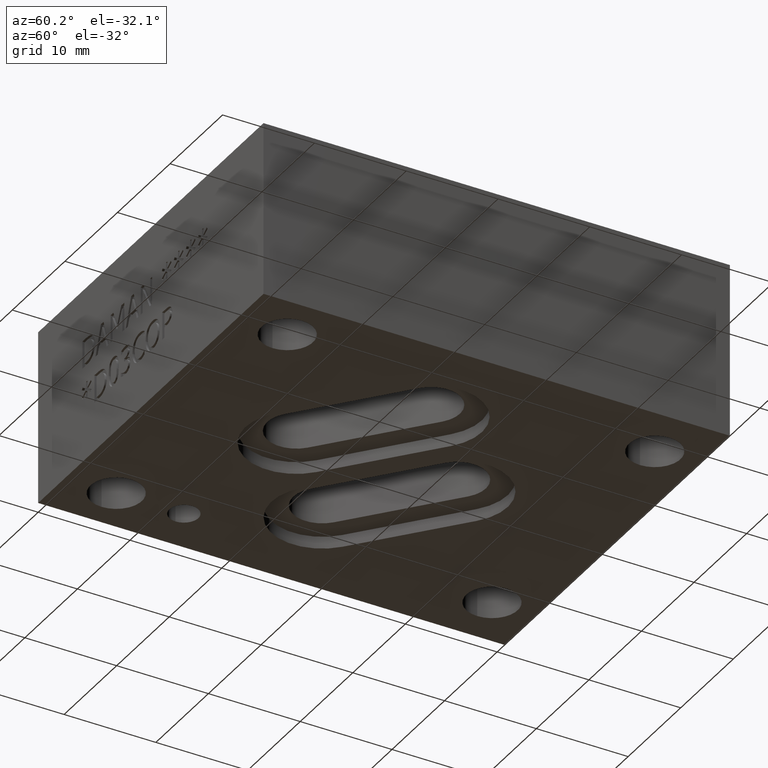
[diagram: clean part render]
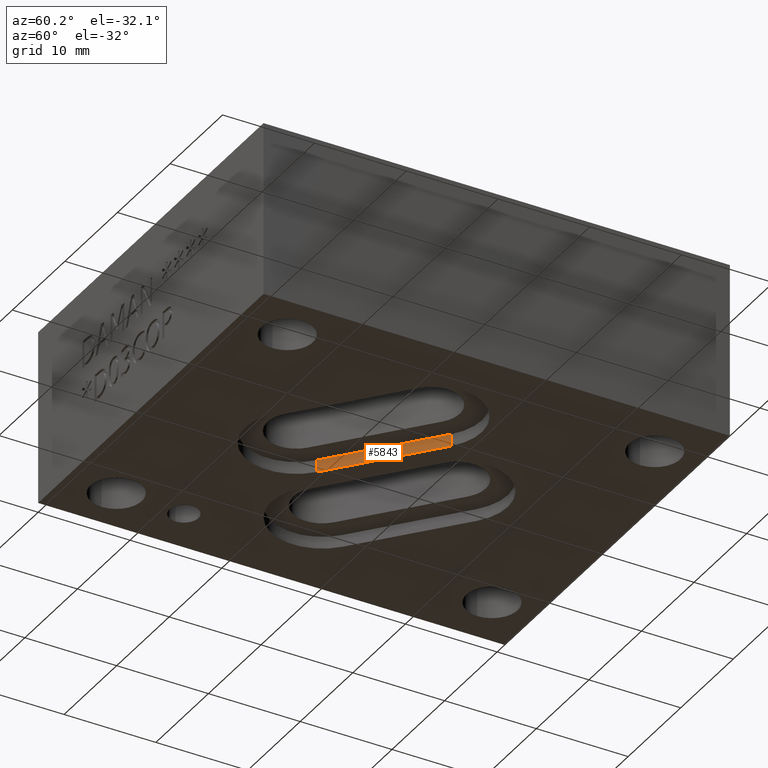
[diagram: same view with one face highlighted and labeled with its STEP entity id]
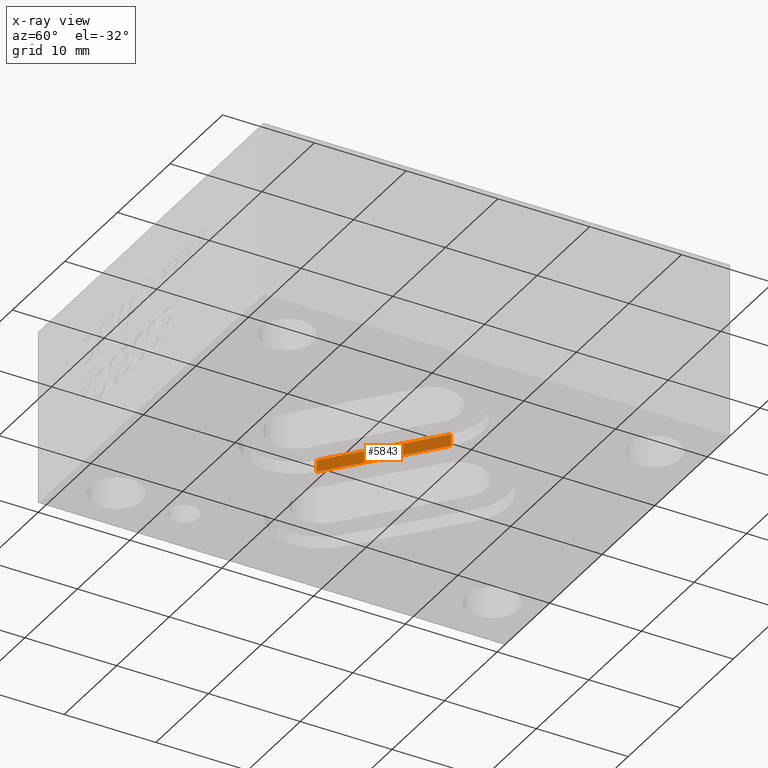
[diagram: x-ray of the same camera — body ghosted, the highlighted face saturated]
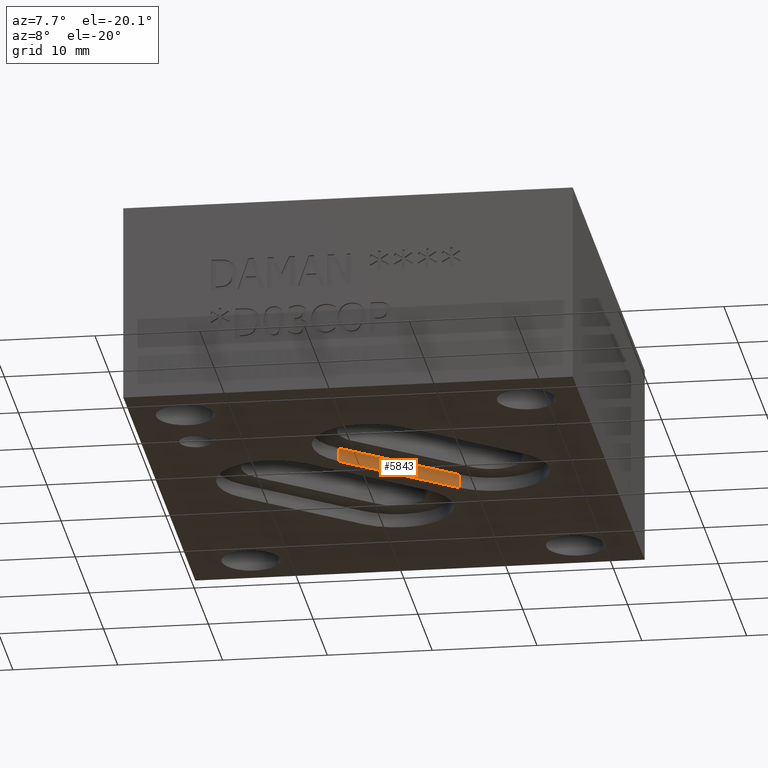
[diagram: same view with one face highlighted and labeled with its STEP entity id]
A machine part, auxiliary view. The second image highlights one B-rep face of the part: STEP entity #5843.
The next image is the same camera in x-ray: the body ghosted, the highlighted face saturated — about 0% of this face is hidden behind the body in this view.
A second angle (auxiliary view) of the same face is appended — the face is thin or edge-on in the first view.
In plain terms, the highlighted planar face has unit normal (-0.6455, 0.7637, 0).
Its self-contained STEP definition (entity closure, byte-faithful):
#468=FACE_OUTER_BOUND('',#798,.T.);
#798=EDGE_LOOP('',(#5230,#5231,#5232,#5233));
#1442=LINE('',#10251,#2078);
#1443=LINE('',#10253,#2079);
#1444=LINE('',#10255,#2080);
#1445=LINE('',#10256,#2081);
#2078=VECTOR('',#7170,0.532902430093915);
#2079=VECTOR('',#7171,0.052);
#2080=VECTOR('',#7172,0.532902430093915);
#2081=VECTOR('',#7173,0.052);
#2802=VERTEX_POINT('',#10249);
#2803=VERTEX_POINT('',#10250);
#2804=VERTEX_POINT('',#10252);
#2805=VERTEX_POINT('',#10254);
#3623=EDGE_CURVE('',#2802,#2803,#1442,.T.);
#3624=EDGE_CURVE('',#2802,#2804,#1443,.T.);
#3625=EDGE_CURVE('',#2805,#2804,#1444,.T.);
#3626=EDGE_CURVE('',#2803,#2805,#1445,.T.);
#5230=ORIENTED_EDGE('',*,*,#3623,.F.);
#5231=ORIENTED_EDGE('',*,*,#3624,.T.);
#5232=ORIENTED_EDGE('',*,*,#3625,.F.);
#5233=ORIENTED_EDGE('',*,*,#3626,.F.);
#5546=PLANE('',#6093);
#5843=ADVANCED_FACE('',(#468),#5546,.F.);
#6093=AXIS2_PLACEMENT_3D('',#10248,#7168,#7169);
#7168=DIRECTION('center_axis',(-0.64552154498409,0.763742060489897,0.));
#7169=DIRECTION('ref_axis',(0.,0.,1.));
#7170=DIRECTION('',(0.763742060489897,0.64552154498409,0.));
#7171=DIRECTION('',(0.,0.,-1.));
#7172=DIRECTION('',(-0.763742060489897,-0.64552154498409,0.));
#7173=DIRECTION('',(0.,0.,-1.));
#10248=CARTESIAN_POINT('Origin',(0.702630781648484,0.791259511247288,0.));
#10249=CARTESIAN_POINT('',(0.702630781648484,0.791259511247288,0.052));
#10250=CARTESIAN_POINT('',(1.10963078164848,1.13525951124729,0.052));
#10251=CARTESIAN_POINT('',(0.702630781648484,0.791259511247288,0.052));
#10252=CARTESIAN_POINT('',(0.702630781648484,0.791259511247288,0.));
#10253=CARTESIAN_POINT('',(0.702630781648484,0.791259511247288,0.052));
#10254=CARTESIAN_POINT('',(1.10963078164848,1.13525951124729,0.));
#10255=CARTESIAN_POINT('',(1.10963078164848,1.13525951124729,0.));
#10256=CARTESIAN_POINT('',(1.10963078164848,1.13525951124729,0.052));